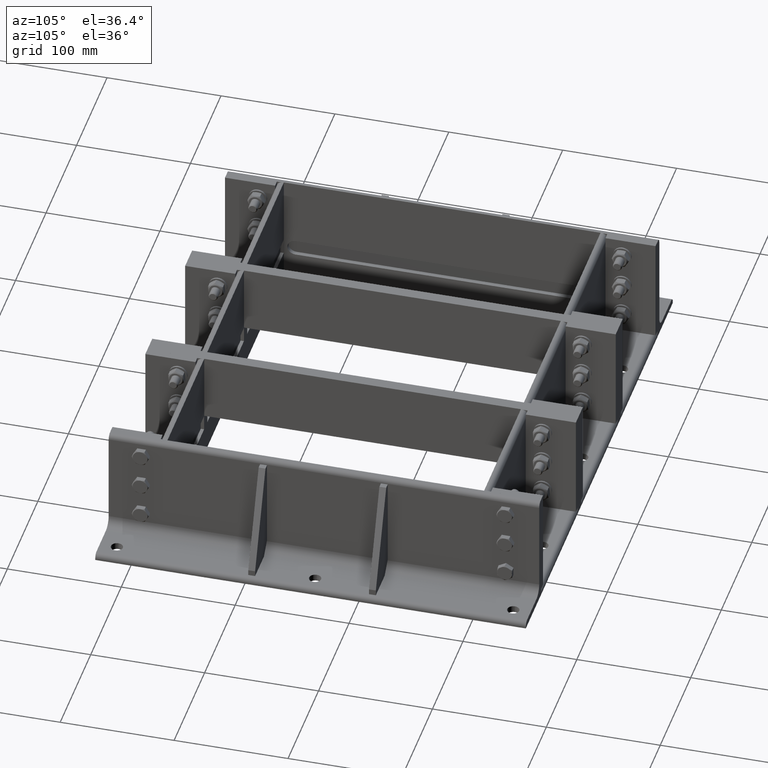
[diagram: clean part render]
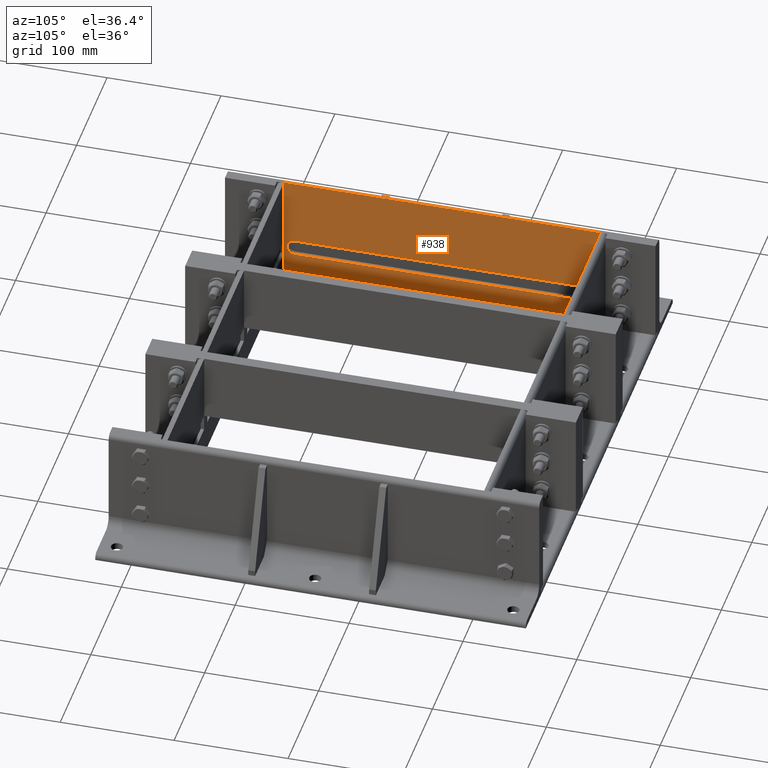
[diagram: same view with one face highlighted and labeled with its STEP entity id]
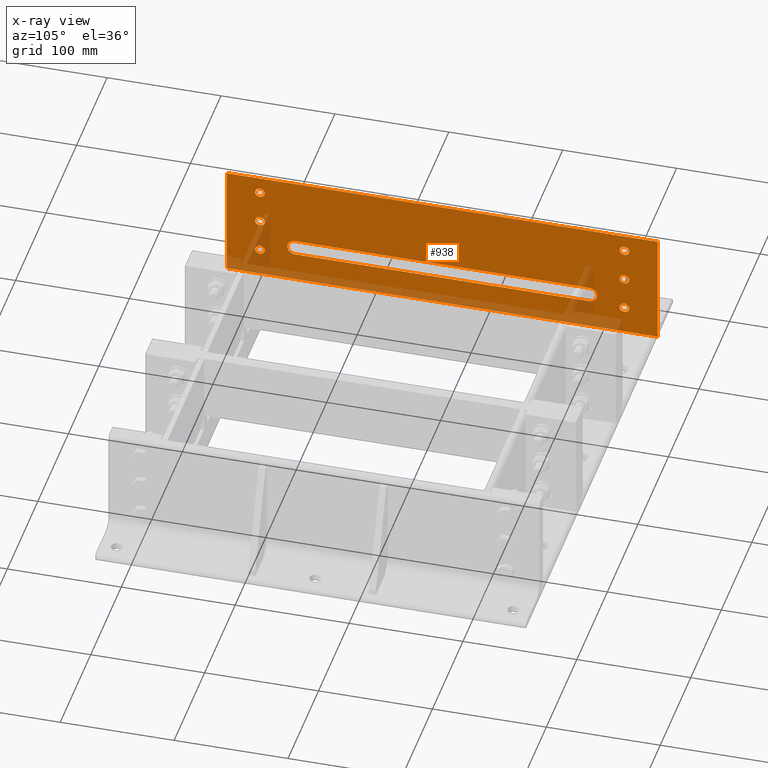
[diagram: x-ray of the same camera — body ghosted, the highlighted face saturated]
A machine part, auxiliary view. The second image highlights one B-rep face of the part: STEP entity #938.
The next image is the same camera in x-ray: the body ghosted, the highlighted face saturated — about 13% of this face is hidden behind the body in this view.
In plain terms, the highlighted planar face has unit normal (1, -0, -0).
Its self-contained STEP definition (entity closure, byte-faithful):
#440=CARTESIAN_POINT('',(1.221245E-014,0.0,100.0));
#441=VERTEX_POINT('',#440);
#448=CARTESIAN_POINT('',(0.0,0.0,0.0));
#449=VERTEX_POINT('',#448);
#450=CARTESIAN_POINT('',(1.221245E-014,0.0,100.0));
#451=DIRECTION('',(0.0,0.0,-1.0));
#452=VECTOR('',#451,100.0);
#453=LINE('',#450,#452);
#454=EDGE_CURVE('',#441,#449,#453,.T.);
#504=CARTESIAN_POINT('',(1.221245E-014,378.00000000000006,100.0));
#505=VERTEX_POINT('',#504);
#512=CARTESIAN_POINT('',(1.221245E-014,0.0,100.0));
#513=DIRECTION('',(0.0,1.0,0.0));
#514=VECTOR('',#513,378.00000000000006);
#515=LINE('',#512,#514);
#516=EDGE_CURVE('',#441,#505,#515,.T.);
#538=CARTESIAN_POINT('',(7.235879E-015,349.00000000000006,59.249999999999986));
#539=VERTEX_POINT('',#538);
#540=CARTESIAN_POINT('',(0.0,349.00000000000006,55.0));
#541=DIRECTION('',(1.0,0.0,0.0));
#542=DIRECTION('',(0.0,0.0,-1.0));
#543=AXIS2_PLACEMENT_3D('',#540,#541,#542);
#544=CIRCLE('',#543,4.249999999999989);
#545=EDGE_CURVE('',#539,#539,#544,.T.);
#566=CARTESIAN_POINT('',(1.089961E-014,29.000000000000004,89.249999999999986));
#567=VERTEX_POINT('',#566);
#568=CARTESIAN_POINT('',(0.0,29.000000000000004,85.0));
#569=DIRECTION('',(1.0,0.0,0.0));
#570=DIRECTION('',(0.0,0.0,-1.0));
#571=AXIS2_PLACEMENT_3D('',#568,#569,#570);
#572=CIRCLE('',#571,4.249999999999997);
#573=EDGE_CURVE('',#567,#567,#572,.T.);
#594=CARTESIAN_POINT('',(3.572143E-015,29.000000000000014,29.250000000000004));
#595=VERTEX_POINT('',#594);
#596=CARTESIAN_POINT('',(0.0,29.000000000000014,25.0));
#597=DIRECTION('',(1.0,0.0,0.0));
#598=DIRECTION('',(0.0,0.0,-1.0));
#599=AXIS2_PLACEMENT_3D('',#596,#597,#598);
#600=CIRCLE('',#599,4.250000000000001);
#601=EDGE_CURVE('',#595,#595,#600,.T.);
#622=CARTESIAN_POINT('',(7.235879E-015,29.000000000000004,59.25));
#623=VERTEX_POINT('',#622);
#624=CARTESIAN_POINT('',(0.0,29.000000000000004,55.0));
#625=DIRECTION('',(1.0,0.0,0.0));
#626=DIRECTION('',(0.0,0.0,-1.0));
#627=AXIS2_PLACEMENT_3D('',#624,#625,#626);
#628=CIRCLE('',#627,4.25);
#629=EDGE_CURVE('',#623,#623,#628,.T.);
#650=CARTESIAN_POINT('',(3.572143E-015,349.00000000000006,29.249999999999989));
#651=VERTEX_POINT('',#650);
#652=CARTESIAN_POINT('',(0.0,349.00000000000006,25.0));
#653=DIRECTION('',(1.0,0.0,0.0));
#654=DIRECTION('',(0.0,0.0,-1.0));
#655=AXIS2_PLACEMENT_3D('',#652,#653,#654);
#656=CIRCLE('',#655,4.249999999999989);
#657=EDGE_CURVE('',#651,#651,#656,.T.);
#678=CARTESIAN_POINT('',(1.089961E-014,349.00000000000006,89.249999999999986));
#679=VERTEX_POINT('',#678);
#680=CARTESIAN_POINT('',(0.0,349.00000000000006,85.0));
#681=DIRECTION('',(1.0,0.0,0.0));
#682=DIRECTION('',(0.0,0.0,-1.0));
#683=AXIS2_PLACEMENT_3D('',#680,#681,#682);
#684=CIRCLE('',#683,4.249999999999991);
#685=EDGE_CURVE('',#679,#679,#684,.T.);
#695=CARTESIAN_POINT('',(3.175238E-015,60.0,26.000000000000032));
#696=VERTEX_POINT('',#695);
#697=CARTESIAN_POINT('',(3.175238E-015,318.00000000000006,26.0));
#698=VERTEX_POINT('',#697);
#699=CARTESIAN_POINT('',(3.175238E-015,60.0,26.000000000000032));
#700=DIRECTION('',(0.0,1.0,0.0));
#701=VECTOR('',#700,258.00000000000006);
#702=LINE('',#699,#701);
#703=EDGE_CURVE('',#696,#698,#702,.T.);
#735=CARTESIAN_POINT('',(4.884981E-015,60.0,40.000000000000014));
#736=VERTEX_POINT('',#735);
#737=CARTESIAN_POINT('',(0.0,60.0,33.000000000000028));
#738=DIRECTION('',(1.0,0.0,0.0));
#739=DIRECTION('',(0.0,0.0,1.0));
#740=AXIS2_PLACEMENT_3D('',#737,#738,#739);
#741=CIRCLE('',#740,6.999999999999998);
#742=EDGE_CURVE('',#736,#696,#741,.T.);
#768=CARTESIAN_POINT('',(4.884981E-015,318.00000000000006,40.000000000000007));
#769=VERTEX_POINT('',#768);
#770=CARTESIAN_POINT('',(4.884981E-015,318.00000000000006,40.000000000000007));
#771=DIRECTION('',(0.0,-1.0,0.0));
#772=VECTOR('',#771,258.00000000000006);
#773=LINE('',#770,#772);
#774=EDGE_CURVE('',#769,#736,#773,.T.);
#799=CARTESIAN_POINT('',(0.0,318.00000000000006,33.0));
#800=DIRECTION('',(1.0,0.0,0.0));
#801=DIRECTION('',(0.0,0.0,-1.0));
#802=AXIS2_PLACEMENT_3D('',#799,#800,#801);
#803=CIRCLE('',#802,6.999999999999991);
#804=EDGE_CURVE('',#698,#769,#803,.T.);
#836=CARTESIAN_POINT('',(0.0,378.00000000000006,0.0));
#837=VERTEX_POINT('',#836);
#838=CARTESIAN_POINT('',(0.0,0.0,0.0));
#839=DIRECTION('',(0.0,1.0,0.0));
#840=VECTOR('',#839,378.00000000000006);
#841=LINE('',#838,#840);
#842=EDGE_CURVE('',#449,#837,#841,.T.);
#898=CARTESIAN_POINT('',(0.0,0.0,0.0));
#899=DIRECTION('',(-1.0,0.0,0.0));
#900=DIRECTION('',(0.0,0.0,1.0));
#901=AXIS2_PLACEMENT_3D('',#898,#899,#900);
#902=PLANE('',#901);
#903=ORIENTED_EDGE('',*,*,#454,.F.);
#904=ORIENTED_EDGE('',*,*,#516,.T.);
#905=CARTESIAN_POINT('',(-1.577722E-030,378.00000000000006,0.0));
#906=DIRECTION('',(0.0,0.0,1.0));
#907=VECTOR('',#906,100.0);
#908=LINE('',#905,#907);
#909=EDGE_CURVE('',#837,#505,#908,.T.);
#910=ORIENTED_EDGE('',*,*,#909,.F.);
#911=ORIENTED_EDGE('',*,*,#842,.F.);
#912=EDGE_LOOP('',(#903,#904,#910,#911));
#913=FACE_OUTER_BOUND('',#912,.T.);
#914=ORIENTED_EDGE('',*,*,#545,.T.);
#915=EDGE_LOOP('',(#914));
#916=FACE_BOUND('',#915,.T.);
#917=ORIENTED_EDGE('',*,*,#573,.T.);
#918=EDGE_LOOP('',(#917));
#919=FACE_BOUND('',#918,.T.);
#920=ORIENTED_EDGE('',*,*,#601,.T.);
#921=EDGE_LOOP('',(#920));
#922=FACE_BOUND('',#921,.T.);
#923=ORIENTED_EDGE('',*,*,#629,.T.);
#924=EDGE_LOOP('',(#923));
#925=FACE_BOUND('',#924,.T.);
#926=ORIENTED_EDGE('',*,*,#657,.T.);
#927=EDGE_LOOP('',(#926));
#928=FACE_BOUND('',#927,.T.);
#929=ORIENTED_EDGE('',*,*,#685,.T.);
#930=EDGE_LOOP('',(#929));
#931=FACE_BOUND('',#930,.T.);
#932=ORIENTED_EDGE('',*,*,#703,.T.);
#933=ORIENTED_EDGE('',*,*,#804,.T.);
#934=ORIENTED_EDGE('',*,*,#774,.T.);
#935=ORIENTED_EDGE('',*,*,#742,.T.);
#936=EDGE_LOOP('',(#932,#933,#934,#935));
#937=FACE_BOUND('',#936,.T.);
#938=ADVANCED_FACE('',(#913,#916,#919,#922,#925,#928,#931,#937),#902,.T.);